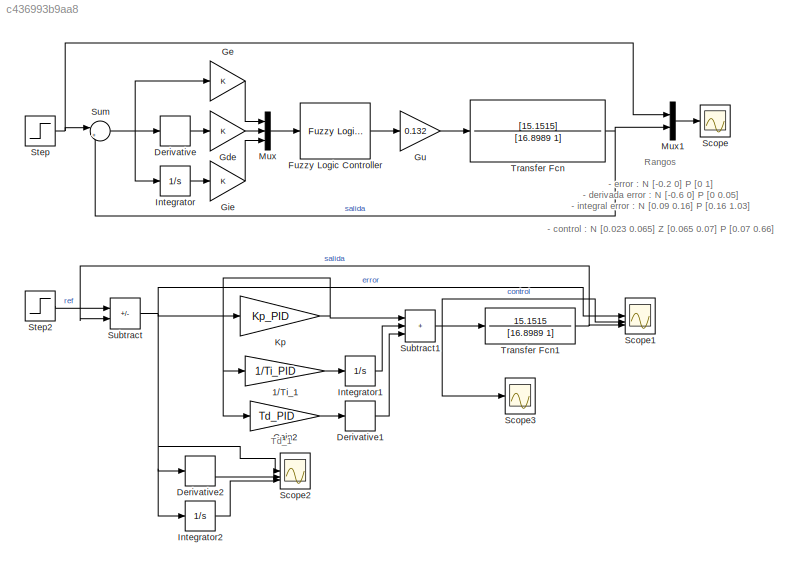
MODEL slx_c436993b9aa8
KIND model
CONFIG AbsTol = auto
CONFIG EnableMultiTasking = off
CONFIG FixedStep = auto
CONFIG MaxStep = auto
CONFIG MinStep = auto
CONFIG RelTol = 1e-3
CONFIG SampleTimeConstraint = Unconstrained
CONFIG SolverName = VariableStepAuto
CONFIG StartTime = 0.0
CONFIG StopTime = 200
BLOCK [Gain] 1//Ti_1
  Gain = 1/Ti_PID
BLOCK [Derivative] Derivative
BLOCK [Derivative] Derivative1
BLOCK [Derivative] Derivative2
BLOCK [Reference] Fuzzy Logic Controller  REF=fuzblock/Fuzzy Logic   (lib defined in mdl_858b3b3e7478)
Controller
  SourceBlock = fuzblock/Fuzzy Logic \nController
  SourceType = Fuzzy Inference System
BLOCK [Gain] Gain2
  Gain = Td_PID
BLOCK [Gain] Gde
BLOCK [Gain] Ge
BLOCK [Gain] Gie
BLOCK [Gain] Gu
  Gain = 0.132
BLOCK [Integrator] Integrator
BLOCK [Integrator] Integrator1
BLOCK [Integrator] Integrator2
BLOCK [Gain] Kp
  Gain = Kp_PID
BLOCK [Mux] Mux
  DisplayOption = bar
  Inputs = 3
BLOCK [Mux] Mux1
  DisplayOption = bar
  Inputs = 2
BLOCK [Scope] Scope
  Floating = off
  NumInputPorts = 1
  ScopeSpecificationString = Simulink.scopes.TimeScopeBlockCfg('CurrentConfiguration', extmgr.ConfigurationSet(extmgr.Configuration('Core','General UI',true),extmgr.Configuration('Core','Source UI',true),extmgr.Configuration('Sources','WiredSimulink',true),extmgr.Configuration('Visuals','Time Domain',true,'SerializedDisplays',{struct('MinYLimReal','-0.14197','MaxYLimReal','1.27774','YLabelReal','','MinYLimMag','0.00000','MaxY...<+1483ch>
BLOCK [Scope] Scope1
  Floating = off
  NumInputPorts = 3
  ScopeSpecificationString = Simulink.scopes.TimeScopeBlockCfg('CurrentConfiguration', extmgr.ConfigurationSet(extmgr.Configuration('Core','General UI',true),extmgr.Configuration('Core','Source UI',true),extmgr.Configuration('Sources','WiredSimulink',true,'DataLoggingVariableName','ScopeData1'),extmgr.Configuration('Visuals','Time Domain',true,'SerializedDisplays',{struct('MinYLimReal','-1.00000','MaxYLimReal','1.00000','YLab...<+1586ch>
BLOCK [Scope] Scope2
  Floating = off
  NumInputPorts = 3
  ScopeSpecificationString = Simulink.scopes.TimeScopeBlockCfg('CurrentConfiguration', extmgr.ConfigurationSet(extmgr.Configuration('Core','General UI',true),extmgr.Configuration('Core','Source UI',true),extmgr.Configuration('Sources','WiredSimulink',true,'DataLoggingVariableName','ScopeData1'),extmgr.Configuration('Visuals','Time Domain',true,'SerializedDisplays',{struct('MinYLimReal','-0.63858','MaxYLimReal','0.23034','YLab...<+1595ch>
BLOCK [Scope] Scope3
  Floating = off
  NumInputPorts = 1
  ScopeSpecificationString = Simulink.scopes.TimeScopeBlockCfg('CurrentConfiguration', extmgr.ConfigurationSet(extmgr.Configuration('Core','General UI',true),extmgr.Configuration('Core','Source UI',true),extmgr.Configuration('Sources','WiredSimulink',true,'DataLoggingVariableName','ScopeData2'),extmgr.Configuration('Visuals','Time Domain',true,'SerializedDisplays',{struct('MinYLimReal','-1.00000','MaxYLimReal','1.00000','YLab...<+1570ch>
BLOCK [Step] Step
  SampleTime = 0
BLOCK [Step] Step2
  SampleTime = 0
BLOCK [Sum] Subtract
  IconShape = rectangular
  Inputs = +-
BLOCK [Sum] Subtract1
  IconShape = rectangular
  Inputs = +++
BLOCK [Sum] Sum
  Inputs = |+-
BLOCK [TransferFcn] Transfer Fcn
  Denominator = [16.8989 1]
  Numerator = [15.1515]
BLOCK [TransferFcn] Transfer Fcn1
  Denominator = [16.8989 1]
  Numerator = 15.1515
ANNOTATION (root): Rangos - error : N [-0.2 0] P [0 1] - derivada error : N [-0.6 0] P [0 0.05] - integral error : N [0.09 0.16] P [0.16 1.03] - control : N [0.023 0.065] Z [0.065 0.07] P [0.07 0.66]
ANNOTATION (root): Td_1
LINE 1//Ti_1:1 -> Integrator1:1
LINE Derivative1:1 -> Subtract1:3
LINE Derivative2:1 -> Scope2:2
LINE Derivative:1 -> Gde:1
LINE Fuzzy Logic Controller:1 -> Gu:1
LINE Gain2:1 -> Derivative1:1
LINE Gde:1 -> Mux:2
LINE Ge:1 -> Mux:1
LINE Gie:1 -> Mux:3
LINE Gu:1 -> Transfer Fcn:1
LINE Integrator1:1 -> Subtract1:2
LINE Integrator2:1 -> Scope2:3
LINE Integrator:1 -> Gie:1
NET Kp:1 -> 1//Ti_1:1, Gain2:1, Subtract1:1
LINE Mux1:1 -> Scope:1
LINE Mux:1 -> Fuzzy Logic Controller:1
LINE Step2:1 -> Subtract:1
NET Step:1 -> Mux1:1, Sum:1
NET Subtract1:1 -> Scope1:2, Scope3:1, Transfer Fcn1:1
NET Subtract:1 -> Derivative2:1, Integrator2:1, Kp:1, Scope1:1, Scope2:1
NET Sum:1 -> Derivative:1, Ge:1, Integrator:1
NET Transfer Fcn1:1 -> Scope1:3, Subtract:2
NET Transfer Fcn:1 -> Mux1:2, Sum:2
note: NET lines group one-source signal fan-out (src -> all destinations, sorted); 1:1 wires keep LINE
